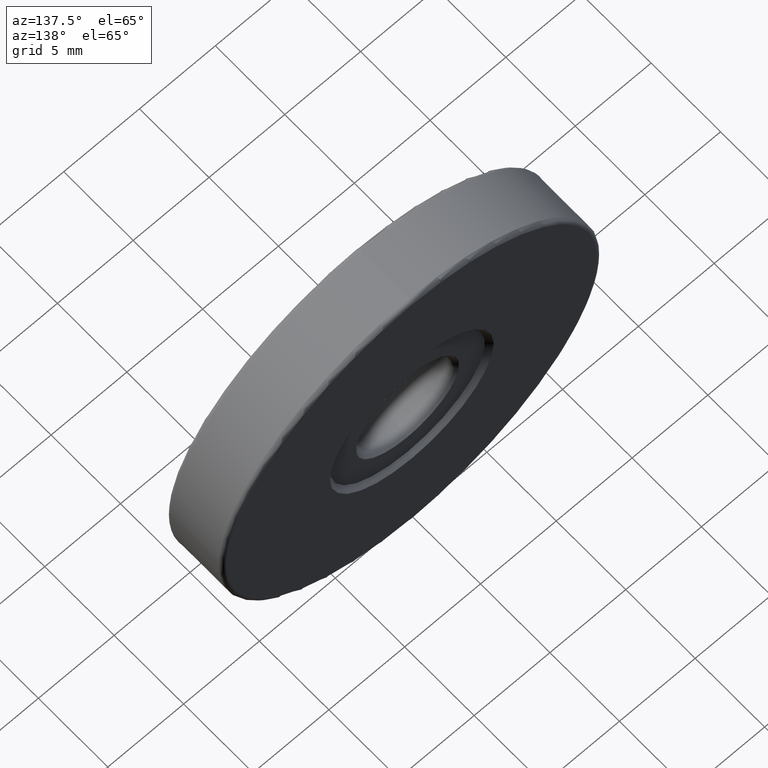
[diagram: clean part render]
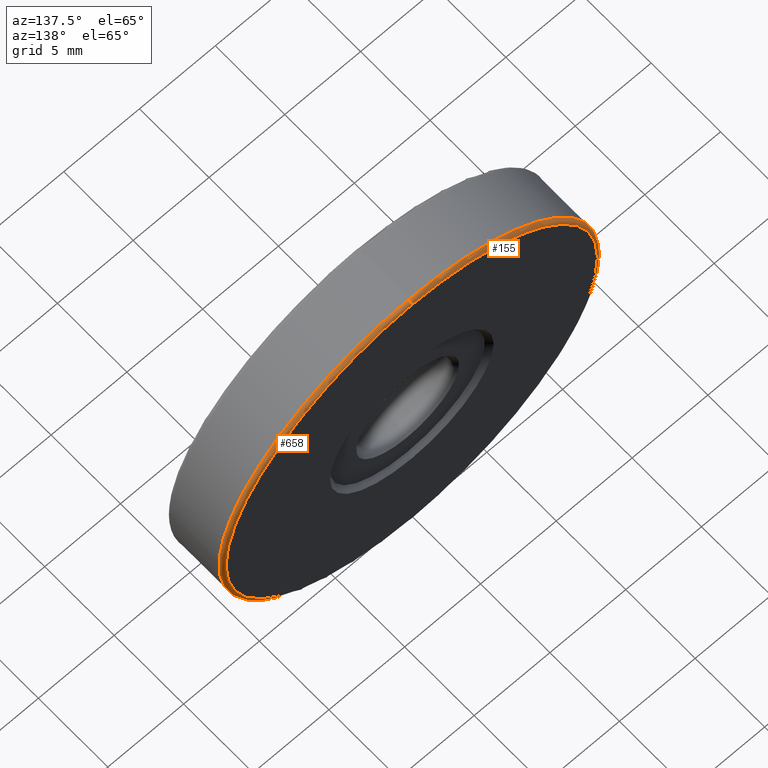
[diagram: same view with one multi-face feature highlighted, each face labeled with its STEP entity id]
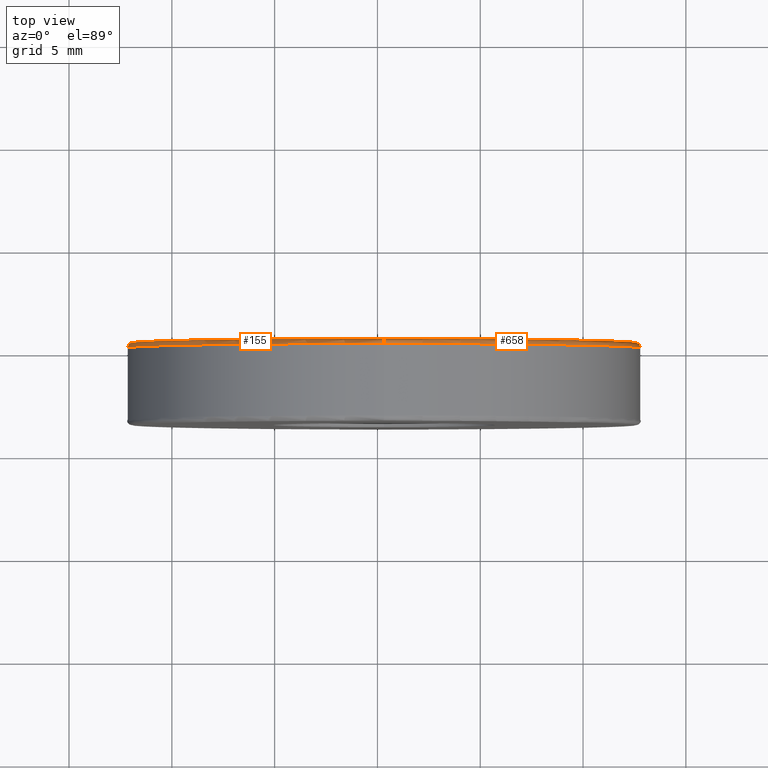
[diagram: same view with one multi-face feature highlighted, each face labeled with its STEP entity id]
A machine part, auxiliary view. The highlighted faces form ONE feature: a constant-radius fillet chain: 2 tangent blend faces with common blend radius 0.25 mm. The faces share edges in the B-rep.
A second angle (top view) of the same feature is appended — it is thin or edge-on in the first view.
Their STEP definitions:
[1] entity #155 (Torus):
#21 = DIRECTION ( 'NONE',  ( 1.000000000000000000, -0.0000000000000000000, 1.224646799147353207E-16 ) ) ;
#23 = DIRECTION ( 'NONE',  ( 0.0000000000000000000, 0.0000000000000000000, 1.000000000000000000 ) ) ;
#29 = EDGE_LOOP ( 'NONE', ( #363, #197, #62, #273 ) ) ;
#35 = CARTESIAN_POINT ( 'NONE',  ( -4.682026255059964726, 0.1550240230017252141, 37.50000000000000711 ) ) ;
#38 = AXIS2_PLACEMENT_3D ( 'NONE', #356, #194, #23 ) ;
#62 = ORIENTED_EDGE ( 'NONE', *, *, #111, .T. ) ;
#93 = DIRECTION ( 'NONE',  ( 0.0000000000000000000, 0.0000000000000000000, 1.000000000000000000 ) ) ;
#111 = EDGE_CURVE ( 'NONE', #604, #697, #316, .T. ) ;
#132 = DIRECTION ( 'NONE',  ( 0.0000000000000000000, 0.0000000000000000000, 1.000000000000000000 ) ) ;
#133 = AXIS2_PLACEMENT_3D ( 'NONE', #405, #21, #502 ) ;
#151 = AXIS2_PLACEMENT_3D ( 'NONE', #571, #397, #132 ) ;
#154 = DIRECTION ( 'NONE',  ( -1.000000000000000000, 0.0000000000000000000, 0.0000000000000000000 ) ) ;
#155 = ADVANCED_FACE ( 'NONE', ( #487 ), #362, .T. ) ;
#194 = DIRECTION ( 'NONE',  ( -0.0000000000000000000, -1.000000000000000000, -0.0000000000000000000 ) ) ;
#197 = ORIENTED_EDGE ( 'NONE', *, *, #551, .F. ) ;
#200 = EDGE_CURVE ( 'NONE', #497, #663, #437, .T. ) ;
#230 = AXIS2_PLACEMENT_3D ( 'NONE', #705, #154, #93 ) ;
#260 = EDGE_CURVE ( 'NONE', #663, #697, #689, .T. ) ;
#273 = ORIENTED_EDGE ( 'NONE', *, *, #260, .F. ) ;
#316 = CIRCLE ( 'NONE', #230, 0.2500000000000002220 ) ;
#344 = CARTESIAN_POINT ( 'NONE',  ( -4.682026255059964726, 0.4050240230017252419, 37.25000000000000711 ) ) ;
#356 = CARTESIAN_POINT ( 'NONE',  ( -4.682026255059964726, 0.1550240230017252141, 25.00000000000000000 ) ) ;
#362 = TOROIDAL_SURFACE ( 'NONE', #382, 12.25000000000000000, 0.2500000000000000000 ) ;
#363 = ORIENTED_EDGE ( 'NONE', *, *, #200, .F. ) ;
#368 = DIRECTION ( 'NONE',  ( 0.0000000000000000000, 0.0000000000000000000, 1.000000000000000000 ) ) ;
#382 = AXIS2_PLACEMENT_3D ( 'NONE', #424, #708, #368 ) ;
#386 = CARTESIAN_POINT ( 'NONE',  ( -4.682026255059962949, 0.4050240230017252419, 12.75000000000000178 ) ) ;
#397 = DIRECTION ( 'NONE',  ( 0.0000000000000000000, 1.000000000000000000, 0.0000000000000000000 ) ) ;
#405 = CARTESIAN_POINT ( 'NONE',  ( -4.682026255059962949, 0.1550240230017252141, 12.75000000000000178 ) ) ;
#424 = CARTESIAN_POINT ( 'NONE',  ( -4.682026255059964726, 0.1550240230017252141, 25.00000000000000000 ) ) ;
#437 = CIRCLE ( 'NONE', #133, 0.2500000000000002220 ) ;
#487 = FACE_OUTER_BOUND ( 'NONE', #29, .T. ) ;
#497 = VERTEX_POINT ( 'NONE', #582 ) ;
#502 = DIRECTION ( 'NONE',  ( 0.0000000000000000000, 0.0000000000000000000, -1.000000000000000000 ) ) ;
#551 = EDGE_CURVE ( 'NONE', #604, #497, #660, .T. ) ;
#571 = CARTESIAN_POINT ( 'NONE',  ( -4.682026255059964726, 0.4050240230017252419, 25.00000000000000000 ) ) ;
#582 = CARTESIAN_POINT ( 'NONE',  ( -4.682026255059962949, 0.1550240230017252141, 12.50000000000000000 ) ) ;
#604 = VERTEX_POINT ( 'NONE', #35 ) ;
#660 = CIRCLE ( 'NONE', #38, 12.50000000000000355 ) ;
#663 = VERTEX_POINT ( 'NONE', #386 ) ;
#689 = CIRCLE ( 'NONE', #151, 12.25000000000000355 ) ;
#697 = VERTEX_POINT ( 'NONE', #344 ) ;
#705 = CARTESIAN_POINT ( 'NONE',  ( -4.682026255059964726, 0.1550240230017252141, 37.25000000000000711 ) ) ;
#708 = DIRECTION ( 'NONE',  ( 0.0000000000000000000, 1.000000000000000000, 0.0000000000000000000 ) ) ;
[2] entity #658 (Torus):
#21 = DIRECTION ( 'NONE',  ( 1.000000000000000000, -0.0000000000000000000, 1.224646799147353207E-16 ) ) ;
#22 = EDGE_LOOP ( 'NONE', ( #284, #236, #704, #205 ) ) ;
#35 = CARTESIAN_POINT ( 'NONE',  ( -4.682026255059964726, 0.1550240230017252141, 37.50000000000000711 ) ) ;
#93 = DIRECTION ( 'NONE',  ( 0.0000000000000000000, 0.0000000000000000000, 1.000000000000000000 ) ) ;
#111 = EDGE_CURVE ( 'NONE', #604, #697, #316, .T. ) ;
#114 = CARTESIAN_POINT ( 'NONE',  ( -4.682026255059964726, 0.1550240230017252141, 25.00000000000000000 ) ) ;
#133 = AXIS2_PLACEMENT_3D ( 'NONE', #405, #21, #502 ) ;
#154 = DIRECTION ( 'NONE',  ( -1.000000000000000000, 0.0000000000000000000, 0.0000000000000000000 ) ) ;
#163 = DIRECTION ( 'NONE',  ( 0.0000000000000000000, 1.000000000000000000, 0.0000000000000000000 ) ) ;
#187 = AXIS2_PLACEMENT_3D ( 'NONE', #562, #278, #714 ) ;
#200 = EDGE_CURVE ( 'NONE', #497, #663, #437, .T. ) ;
#205 = ORIENTED_EDGE ( 'NONE', *, *, #111, .F. ) ;
#230 = AXIS2_PLACEMENT_3D ( 'NONE', #705, #154, #93 ) ;
#236 = ORIENTED_EDGE ( 'NONE', *, *, #200, .T. ) ;
#256 = CIRCLE ( 'NONE', #466, 12.50000000000000355 ) ;
#278 = DIRECTION ( 'NONE',  ( 0.0000000000000000000, 1.000000000000000000, 0.0000000000000000000 ) ) ;
#281 = DIRECTION ( 'NONE',  ( -0.0000000000000000000, -1.000000000000000000, -0.0000000000000000000 ) ) ;
#282 = DIRECTION ( 'NONE',  ( 0.0000000000000000000, 0.0000000000000000000, 1.000000000000000000 ) ) ;
#284 = ORIENTED_EDGE ( 'NONE', *, *, #457, .F. ) ;
#315 = AXIS2_PLACEMENT_3D ( 'NONE', #548, #163, #282 ) ;
#316 = CIRCLE ( 'NONE', #230, 0.2500000000000002220 ) ;
#344 = CARTESIAN_POINT ( 'NONE',  ( -4.682026255059964726, 0.4050240230017252419, 37.25000000000000711 ) ) ;
#386 = CARTESIAN_POINT ( 'NONE',  ( -4.682026255059962949, 0.4050240230017252419, 12.75000000000000178 ) ) ;
#405 = CARTESIAN_POINT ( 'NONE',  ( -4.682026255059962949, 0.1550240230017252141, 12.75000000000000178 ) ) ;
#437 = CIRCLE ( 'NONE', #133, 0.2500000000000002220 ) ;
#439 = FACE_OUTER_BOUND ( 'NONE', #22, .T. ) ;
#448 = DIRECTION ( 'NONE',  ( 0.0000000000000000000, 0.0000000000000000000, 1.000000000000000000 ) ) ;
#457 = EDGE_CURVE ( 'NONE', #497, #604, #256, .T. ) ;
#466 = AXIS2_PLACEMENT_3D ( 'NONE', #114, #281, #448 ) ;
#497 = VERTEX_POINT ( 'NONE', #582 ) ;
#502 = DIRECTION ( 'NONE',  ( 0.0000000000000000000, 0.0000000000000000000, -1.000000000000000000 ) ) ;
#548 = CARTESIAN_POINT ( 'NONE',  ( -4.682026255059964726, 0.1550240230017252141, 25.00000000000000000 ) ) ;
#562 = CARTESIAN_POINT ( 'NONE',  ( -4.682026255059964726, 0.4050240230017252419, 25.00000000000000000 ) ) ;
#582 = CARTESIAN_POINT ( 'NONE',  ( -4.682026255059962949, 0.1550240230017252141, 12.50000000000000000 ) ) ;
#604 = VERTEX_POINT ( 'NONE', #35 ) ;
#615 = CIRCLE ( 'NONE', #187, 12.25000000000000355 ) ;
#629 = TOROIDAL_SURFACE ( 'NONE', #315, 12.25000000000000000, 0.2500000000000000000 ) ;
#658 = ADVANCED_FACE ( 'NONE', ( #439 ), #629, .T. ) ;
#663 = VERTEX_POINT ( 'NONE', #386 ) ;
#696 = EDGE_CURVE ( 'NONE', #697, #663, #615, .T. ) ;
#697 = VERTEX_POINT ( 'NONE', #344 ) ;
#704 = ORIENTED_EDGE ( 'NONE', *, *, #696, .F. ) ;
#705 = CARTESIAN_POINT ( 'NONE',  ( -4.682026255059964726, 0.1550240230017252141, 37.25000000000000711 ) ) ;
#714 = DIRECTION ( 'NONE',  ( 0.0000000000000000000, 0.0000000000000000000, 1.000000000000000000 ) ) ;